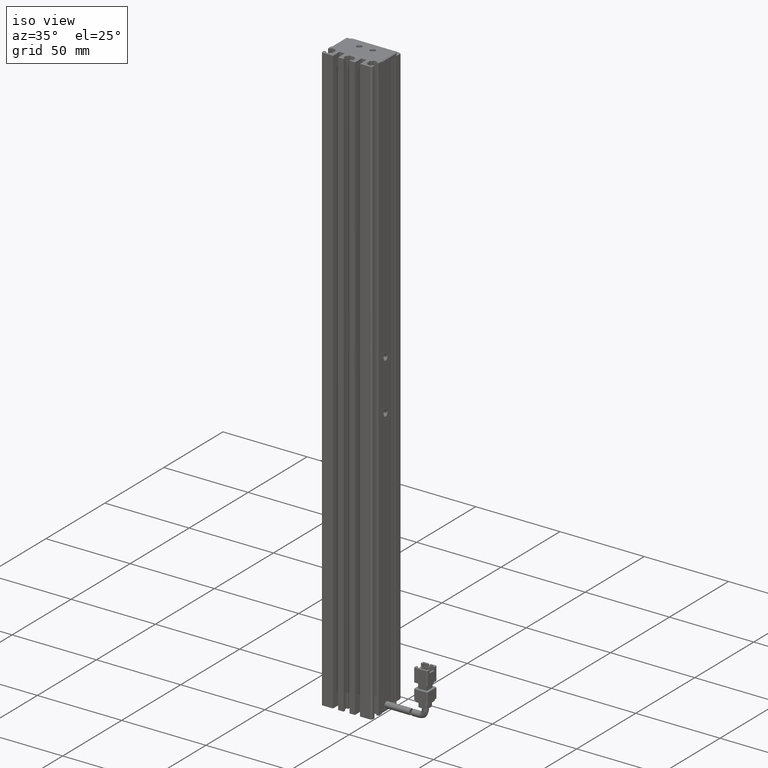
[diagram: clean part render]
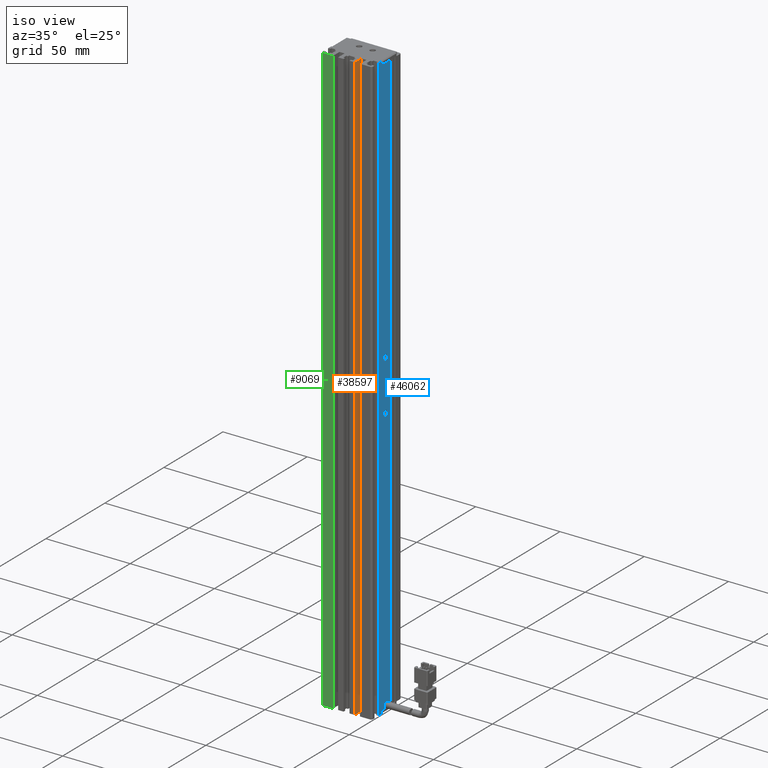
[diagram: same view with three faces highlighted in distinct colors, each labeled with its STEP entity id]
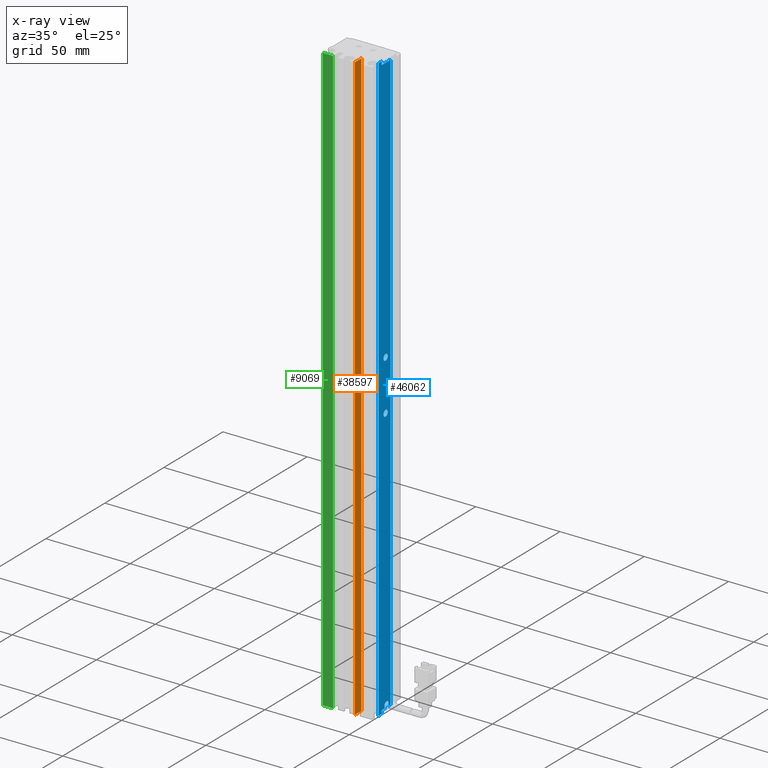
[diagram: x-ray of the same camera — body ghosted, the three highlighted faces saturated]
A machine part, iso view with three faces highlighted in distinct colors.
The next image is the same camera in x-ray (body ghosted, the three faces saturated) — at least one of them is partly hidden behind the body in this view.
Their STEP definitions:

[orange] entity #38597 — the highlighted planar face has unit normal (-1, -0, 0).
#1815 = CARTESIAN_POINT ( 'NONE',  ( 45.92537974683541800, 10.69594479660386800, 60.00000000000001400 ) ) ;
#2630 = VERTEX_POINT ( 'NONE', #11614 ) ;
#4337 = ORIENTED_EDGE ( 'NONE', *, *, #24692, .F. ) ;
#4770 = VECTOR ( 'NONE', #40072, 1000.000000000000000 ) ;
#6033 = PLANE ( 'NONE',  #20970 ) ;
#7322 = CARTESIAN_POINT ( 'NONE',  ( 45.92537974683541800, 7.083797468354437600, -290.0000000000000600 ) ) ;
#8907 = CARTESIAN_POINT ( 'NONE',  ( 45.92537974683541800, 7.083797468354437600, 60.00000000000001400 ) ) ;
#9249 = EDGE_CURVE ( 'NONE', #53989, #2630, #58506, .T. ) ;
#11485 = CARTESIAN_POINT ( 'NONE',  ( 45.92537974683541800, 7.083797468354439400, 60.00000000000001400 ) ) ;
#11614 = CARTESIAN_POINT ( 'NONE',  ( 45.92537974683541800, 16.19594479660386800, 60.00000000000001400 ) ) ;
#16720 = DIRECTION ( 'NONE',  ( 3.154042683594196600E-016, -1.000000000000000000, 0.0000000000000000000 ) ) ;
#17743 = DIRECTION ( 'NONE',  ( 0.0000000000000000000, 1.000000000000000000, -0.0000000000000000000 ) ) ;
#17870 = LINE ( 'NONE', #1815, #57807 ) ;
#19018 = CARTESIAN_POINT ( 'NONE',  ( 45.92537974683541800, 16.19594479660386800, 60.00000000000001400 ) ) ;
#20970 = AXIS2_PLACEMENT_3D ( 'NONE', #11485, #47915, #16720 ) ;
#22292 = FACE_OUTER_BOUND ( 'NONE', #57893, .T. ) ;
#24692 = EDGE_CURVE ( 'NONE', #2630, #41869, #29685, .T. ) ;
#25472 = CARTESIAN_POINT ( 'NONE',  ( 45.92537974683541800, 16.19594479660386800, -290.0000000000000600 ) ) ;
#25681 = EDGE_CURVE ( 'NONE', #65551, #53989, #17870, .T. ) ;
#27649 = EDGE_CURVE ( 'NONE', #65551, #41869, #53643, .T. ) ;
#29685 = LINE ( 'NONE', #19018, #55732 ) ;
#29791 = ORIENTED_EDGE ( 'NONE', *, *, #25681, .F. ) ;
#38597 = ADVANCED_FACE ( 'NONE', ( #22292 ), #6033, .F. ) ;
#39159 = ORIENTED_EDGE ( 'NONE', *, *, #9249, .F. ) ;
#39820 = VECTOR ( 'NONE', #17743, 1000.000000000000000 ) ;
#39826 = CARTESIAN_POINT ( 'NONE',  ( 45.92537974683541800, 10.69594479660386800, -290.0000000000000600 ) ) ;
#40072 = DIRECTION ( 'NONE',  ( 0.0000000000000000000, 1.000000000000000000, -0.0000000000000000000 ) ) ;
#41869 = VERTEX_POINT ( 'NONE', #25472 ) ;
#43685 = DIRECTION ( 'NONE',  ( 0.0000000000000000000, 0.0000000000000000000, 1.000000000000000000 ) ) ;
#45977 = ORIENTED_EDGE ( 'NONE', *, *, #27649, .T. ) ;
#47915 = DIRECTION ( 'NONE',  ( -1.000000000000000000, -3.154042683594196600E-016, 0.0000000000000000000 ) ) ;
#50169 = CARTESIAN_POINT ( 'NONE',  ( 45.92537974683541800, 10.69594479660386800, 60.00000000000001400 ) ) ;
#53643 = LINE ( 'NONE', #7322, #39820 ) ;
#53989 = VERTEX_POINT ( 'NONE', #50169 ) ;
#55732 = VECTOR ( 'NONE', #60715, 1000.000000000000000 ) ;
#57807 = VECTOR ( 'NONE', #43685, 1000.000000000000000 ) ;
#57893 = EDGE_LOOP ( 'NONE', ( #4337, #39159, #29791, #45977 ) ) ;
#58506 = LINE ( 'NONE', #8907, #4770 ) ;
#60715 = DIRECTION ( 'NONE',  ( 0.0000000000000000000, -0.0000000000000000000, -1.000000000000000000 ) ) ;
#65551 = VERTEX_POINT ( 'NONE', #39826 ) ;

[blue] entity #46062 — the highlighted planar face has unit normal (-1, 0, 0).
#957 = ORIENTED_EDGE ( 'NONE', *, *, #5269, .F. ) ;
#1747 = CARTESIAN_POINT ( 'NONE',  ( 55.92537974682178300, 22.39594479660386700, -131.7999999999892700 ) ) ;
#1802 = DIRECTION ( 'NONE',  ( 1.000000000000000000, 5.687617954022316600E-016, -0.0000000000000000000 ) ) ;
#2098 = DIRECTION ( 'NONE',  ( -0.0000000000000000000, 0.0000000000000000000, 1.000000000000000000 ) ) ;
#2313 = LINE ( 'NONE', #26622, #15489 ) ;
#2481 = ORIENTED_EDGE ( 'NONE', *, *, #15106, .F. ) ;
#2681 = EDGE_CURVE ( 'NONE', #32653, #48381, #8466, .T. ) ;
#2732 = CARTESIAN_POINT ( 'NONE',  ( 55.92537974683541100, 7.083797468354417100, 60.00000000000001400 ) ) ;
#2837 = EDGE_CURVE ( 'NONE', #56686, #42574, #32599, .T. ) ;
#4151 = ORIENTED_EDGE ( 'NONE', *, *, #30730, .F. ) ;
#4585 = CARTESIAN_POINT ( 'NONE',  ( 55.92537974683542500, 21.54594479660386600, -288.0000000000000600 ) ) ;
#4954 = FACE_OUTER_BOUND ( 'NONE', #36624, .T. ) ;
#5269 = EDGE_CURVE ( 'NONE', #36469, #59228, #44937, .T. ) ;
#6854 = DIRECTION ( 'NONE',  ( -0.0000000000000000000, 0.0000000000000000000, 1.000000000000000000 ) ) ;
#7111 = AXIS2_PLACEMENT_3D ( 'NONE', #16241, #52635, #21502 ) ;
#7191 = VERTEX_POINT ( 'NONE', #1747 ) ;
#7515 = VECTOR ( 'NONE', #56982, 1000.000000000000000 ) ;
#7553 = ORIENTED_EDGE ( 'NONE', *, *, #40631, .T. ) ;
#7994 = DIRECTION ( 'NONE',  ( -1.394554826879015900E-015, -1.000000000000000000, 0.0000000000000000000 ) ) ;
#8466 = LINE ( 'NONE', #22353, #60595 ) ;
#9502 = LINE ( 'NONE', #26984, #35567 ) ;
#10042 = VECTOR ( 'NONE', #56375, 1000.000000000000000 ) ;
#10043 = VERTEX_POINT ( 'NONE', #13459 ) ;
#10627 = CIRCLE ( 'NONE', #15543, 1.799999999989254600 ) ;
#10849 = VERTEX_POINT ( 'NONE', #62549 ) ;
#11068 = EDGE_LOOP ( 'NONE', ( #55875, #53091 ) ) ;
#11475 = ORIENTED_EDGE ( 'NONE', *, *, #52433, .F. ) ;
#11603 = LINE ( 'NONE', #19958, #10042 ) ;
#12622 = ORIENTED_EDGE ( 'NONE', *, *, #45484, .F. ) ;
#12928 = LINE ( 'NONE', #55278, #26774 ) ;
#13459 = CARTESIAN_POINT ( 'NONE',  ( 55.92537974683539700, 21.54594479660386200, -286.4499999999999900 ) ) ;
#13503 = EDGE_CURVE ( 'NONE', #56686, #42696, #54737, .T. ) ;
#13861 = DIRECTION ( 'NONE',  ( -0.0000000000000000000, -0.0000000000000000000, -1.000000000000000000 ) ) ;
#14108 = LINE ( 'NONE', #60201, #53993 ) ;
#14851 = VECTOR ( 'NONE', #2098, 1000.000000000000000 ) ;
#15106 = EDGE_CURVE ( 'NONE', #20601, #48381, #9502, .T. ) ;
#15489 = VECTOR ( 'NONE', #52569, 1000.000000000000000 ) ;
#15495 = CARTESIAN_POINT ( 'NONE',  ( 55.92537974687862600, 22.39594479660386700, -100.0000000000000000 ) ) ;
#15543 = AXIS2_PLACEMENT_3D ( 'NONE', #22866, #59229, #28073 ) ;
#16241 = CARTESIAN_POINT ( 'NONE',  ( 55.92537974687862600, 22.39594479660386700, -100.0000000000000000 ) ) ;
#16803 = ORIENTED_EDGE ( 'NONE', *, *, #2681, .T. ) ;
#18203 = PLANE ( 'NONE',  #30381 ) ;
#18972 = DIRECTION ( 'NONE',  ( 1.000000000000000000, 0.0000000000000000000, 0.0000000000000000000 ) ) ;
#19958 = CARTESIAN_POINT ( 'NONE',  ( 55.92537974683539700, 24.84594479660386300, -288.0000000000000600 ) ) ;
#20538 = CARTESIAN_POINT ( 'NONE',  ( 55.92537974683539700, 24.84594479660386300, -286.4499999999999900 ) ) ;
#20593 = ORIENTED_EDGE ( 'NONE', *, *, #22346, .T. ) ;
#20601 = VERTEX_POINT ( 'NONE', #55135 ) ;
#20737 = DIRECTION ( 'NONE',  ( 0.0000000000000000000, 0.0000000000000000000, -1.000000000000000000 ) ) ;
#21502 = DIRECTION ( 'NONE',  ( 0.0000000000000000000, 0.0000000000000000000, -1.000000000000000000 ) ) ;
#21683 = ORIENTED_EDGE ( 'NONE', *, *, #13503, .T. ) ;
#22346 = EDGE_CURVE ( 'NONE', #25388, #10043, #62657, .T. ) ;
#22353 = CARTESIAN_POINT ( 'NONE',  ( 55.92537974683542500, 19.19594479660386500, 60.00000000000001400 ) ) ;
#22441 = CARTESIAN_POINT ( 'NONE',  ( 55.92537974683542500, 16.49594479660387200, -290.0000000000000600 ) ) ;
#22866 = CARTESIAN_POINT ( 'NONE',  ( 55.92537974682178300, 22.39594479660386700, -130.0000000000000000 ) ) ;
#23783 = DIRECTION ( 'NONE',  ( 0.0000000000000000000, 0.0000000000000000000, 1.000000000000000000 ) ) ;
#23937 = ORIENTED_EDGE ( 'NONE', *, *, #45735, .F. ) ;
#24367 = CARTESIAN_POINT ( 'NONE',  ( 55.92537974683541100, 7.083797468354417100, -290.0000000000000600 ) ) ;
#24538 = CARTESIAN_POINT ( 'NONE',  ( 55.92537974683543200, 19.19594479660386500, -290.0000000000000600 ) ) ;
#24619 = ORIENTED_EDGE ( 'NONE', *, *, #2837, .F. ) ;
#25388 = VERTEX_POINT ( 'NONE', #4585 ) ;
#26622 = CARTESIAN_POINT ( 'NONE',  ( 55.92537974683541100, 7.083797468354417100, 58.00000000000000700 ) ) ;
#26774 = VECTOR ( 'NONE', #13861, 1000.000000000000000 ) ;
#26984 = CARTESIAN_POINT ( 'NONE',  ( 55.92537974683542500, 7.083797468354437600, 60.00000000000001400 ) ) ;
#27120 = VERTEX_POINT ( 'NONE', #20538 ) ;
#27164 = EDGE_CURVE ( 'NONE', #7191, #57667, #66922, .T. ) ;
#28073 = DIRECTION ( 'NONE',  ( 0.0000000000000000000, 0.0000000000000000000, -1.000000000000000000 ) ) ;
#28416 = CARTESIAN_POINT ( 'NONE',  ( 55.92537974687862600, 22.39594479660386700, -98.19999999992660400 ) ) ;
#30231 = EDGE_CURVE ( 'NONE', #57667, #7191, #10627, .T. ) ;
#30300 = CARTESIAN_POINT ( 'NONE',  ( 55.92537974683543200, 19.19594479660386500, 58.00000000000000700 ) ) ;
#30381 = AXIS2_PLACEMENT_3D ( 'NONE', #2732, #39175, #7994 ) ;
#30730 = EDGE_CURVE ( 'NONE', #32653, #31229, #2313, .T. ) ;
#31028 = EDGE_CURVE ( 'NONE', #31229, #54729, #12928, .T. ) ;
#31229 = VERTEX_POINT ( 'NONE', #62583 ) ;
#31871 = VECTOR ( 'NONE', #43271, 1000.000000000000000 ) ;
#32599 = LINE ( 'NONE', #24367, #60305 ) ;
#32653 = VERTEX_POINT ( 'NONE', #30300 ) ;
#33002 = CARTESIAN_POINT ( 'NONE',  ( 55.92537974683539700, 23.19594479660386500, -286.4499999999999900 ) ) ;
#33314 = CARTESIAN_POINT ( 'NONE',  ( 55.92537974683543200, 19.19594479660386500, 60.00000000000001400 ) ) ;
#33523 = LINE ( 'NONE', #38033, #31871 ) ;
#33595 = CARTESIAN_POINT ( 'NONE',  ( 55.92537974683543200, 19.19594479660386500, -288.0000000000000600 ) ) ;
#34941 = VECTOR ( 'NONE', #44763, 1000.000000000000000 ) ;
#35220 = LINE ( 'NONE', #51492, #7515 ) ;
#35567 = VECTOR ( 'NONE', #37444, 1000.000000000000000 ) ;
#35762 = CARTESIAN_POINT ( 'NONE',  ( 55.92537974683543200, 26.69594479660386800, -288.0000000000000600 ) ) ;
#35795 = ORIENTED_EDGE ( 'NONE', *, *, #67564, .F. ) ;
#36469 = VERTEX_POINT ( 'NONE', #49613 ) ;
#36624 = EDGE_LOOP ( 'NONE', ( #20593, #35795, #7553, #51053, #41252, #4151, #16803, #2481, #12622, #24619, #21683, #23937 ) ) ;
#37444 = DIRECTION ( 'NONE',  ( 0.0000000000000000000, 1.000000000000000000, -0.0000000000000000000 ) ) ;
#38033 = CARTESIAN_POINT ( 'NONE',  ( 55.92537974683541100, 7.083797468354417100, -288.0000000000000600 ) ) ;
#38236 = DIRECTION ( 'NONE',  ( 0.0000000000000000000, 1.000000000000000000, 0.0000000000000000000 ) ) ;
#38862 = CARTESIAN_POINT ( 'NONE',  ( 55.92537974683542500, 19.19594479660386500, 60.00000000000001400 ) ) ;
#39175 = DIRECTION ( 'NONE',  ( -1.000000000000000000, 1.394554826879015900E-015, 0.0000000000000000000 ) ) ;
#39550 = CARTESIAN_POINT ( 'NONE',  ( 55.92537974683540400, 21.54594479660386600, -288.0000000000000600 ) ) ;
#40631 = EDGE_CURVE ( 'NONE', #27120, #10849, #11603, .T. ) ;
#41252 = ORIENTED_EDGE ( 'NONE', *, *, #31028, .F. ) ;
#42574 = VERTEX_POINT ( 'NONE', #22441 ) ;
#42696 = VERTEX_POINT ( 'NONE', #33595 ) ;
#43271 = DIRECTION ( 'NONE',  ( -1.394554826879015900E-015, -1.000000000000000000, 0.0000000000000000000 ) ) ;
#43482 = AXIS2_PLACEMENT_3D ( 'NONE', #50159, #18972, #55390 ) ;
#44763 = DIRECTION ( 'NONE',  ( -0.0000000000000000000, -1.119176436114072200E-015, 1.000000000000000000 ) ) ;
#44937 = CIRCLE ( 'NONE', #64984, 1.800000000073395800 ) ;
#45484 = EDGE_CURVE ( 'NONE', #42574, #20601, #14108, .T. ) ;
#45735 = EDGE_CURVE ( 'NONE', #25388, #42696, #35220, .T. ) ;
#45947 = EDGE_CURVE ( 'NONE', #54729, #10849, #33523, .T. ) ;
#46062 = ADVANCED_FACE ( 'NONE', ( #60360, #4954, #46501 ), #18203, .F. ) ;
#46501 = FACE_BOUND ( 'NONE', #11068, .T. ) ;
#48381 = VERTEX_POINT ( 'NONE', #38862 ) ;
#48985 = CARTESIAN_POINT ( 'NONE',  ( 55.92537974682178300, 22.39594479660386700, -128.2000000000107600 ) ) ;
#49613 = CARTESIAN_POINT ( 'NONE',  ( 55.92537974687862600, 22.39594479660386700, -101.8000000000734000 ) ) ;
#50159 = CARTESIAN_POINT ( 'NONE',  ( 55.92537974682178300, 22.39594479660386700, -130.0000000000000000 ) ) ;
#51053 = ORIENTED_EDGE ( 'NONE', *, *, #45947, .F. ) ;
#51492 = CARTESIAN_POINT ( 'NONE',  ( 55.92537974683541100, 7.083797468354417100, -288.0000000000000600 ) ) ;
#51888 = DIRECTION ( 'NONE',  ( 1.000000000000000000, 0.0000000000000000000, 0.0000000000000000000 ) ) ;
#52073 = CIRCLE ( 'NONE', #61118, 1.649999999999998600 ) ;
#52433 = EDGE_CURVE ( 'NONE', #59228, #36469, #55200, .T. ) ;
#52569 = DIRECTION ( 'NONE',  ( 1.394554826879015900E-015, 1.000000000000000000, -0.0000000000000000000 ) ) ;
#52635 = DIRECTION ( 'NONE',  ( 1.000000000000000000, 0.0000000000000000000, 0.0000000000000000000 ) ) ;
#53091 = ORIENTED_EDGE ( 'NONE', *, *, #30231, .F. ) ;
#53993 = VECTOR ( 'NONE', #23783, 1000.000000000000000 ) ;
#54729 = VERTEX_POINT ( 'NONE', #35762 ) ;
#54737 = LINE ( 'NONE', #33314, #14851 ) ;
#55135 = CARTESIAN_POINT ( 'NONE',  ( 55.92537974683542500, 16.49594479660387200, 60.00000000000001400 ) ) ;
#55200 = CIRCLE ( 'NONE', #7111, 1.800000000073395800 ) ;
#55278 = CARTESIAN_POINT ( 'NONE',  ( 55.92537974683543900, 26.69594479660386800, 60.00000000000001400 ) ) ;
#55390 = DIRECTION ( 'NONE',  ( 0.0000000000000000000, 0.0000000000000000000, -1.000000000000000000 ) ) ;
#55875 = ORIENTED_EDGE ( 'NONE', *, *, #27164, .F. ) ;
#56375 = DIRECTION ( 'NONE',  ( -0.0000000000000000000, -0.0000000000000000000, -1.000000000000000000 ) ) ;
#56686 = VERTEX_POINT ( 'NONE', #24538 ) ;
#56982 = DIRECTION ( 'NONE',  ( -1.394554826879015900E-015, -1.000000000000000000, 0.0000000000000000000 ) ) ;
#57667 = VERTEX_POINT ( 'NONE', #48985 ) ;
#59228 = VERTEX_POINT ( 'NONE', #28416 ) ;
#59229 = DIRECTION ( 'NONE',  ( 1.000000000000000000, 0.0000000000000000000, 0.0000000000000000000 ) ) ;
#60201 = CARTESIAN_POINT ( 'NONE',  ( 55.92537974683542500, 16.49594479660387200, 60.00000000000001400 ) ) ;
#60305 = VECTOR ( 'NONE', #60798, 1000.000000000000000 ) ;
#60360 = FACE_BOUND ( 'NONE', #65675, .T. ) ;
#60595 = VECTOR ( 'NONE', #6854, 1000.000000000000000 ) ;
#60798 = DIRECTION ( 'NONE',  ( -1.394554826879015900E-015, -1.000000000000000000, 0.0000000000000000000 ) ) ;
#61118 = AXIS2_PLACEMENT_3D ( 'NONE', #33002, #1802, #38236 ) ;
#62549 = CARTESIAN_POINT ( 'NONE',  ( 55.92537974683541100, 24.84594479660386300, -288.0000000000000600 ) ) ;
#62583 = CARTESIAN_POINT ( 'NONE',  ( 55.92537974683543900, 26.69594479660386800, 58.00000000000000700 ) ) ;
#62657 = LINE ( 'NONE', #39550, #34941 ) ;
#64984 = AXIS2_PLACEMENT_3D ( 'NONE', #15495, #51888, #20737 ) ;
#65675 = EDGE_LOOP ( 'NONE', ( #957, #11475 ) ) ;
#66922 = CIRCLE ( 'NONE', #43482, 1.799999999989254600 ) ;
#67564 = EDGE_CURVE ( 'NONE', #27120, #10043, #52073, .T. ) ;

[green] entity #9069 — the highlighted planar face has unit normal (0, -1, 0).
#168 = VECTOR ( 'NONE', #16183, 1000.000000000000000 ) ;
#530 = CARTESIAN_POINT ( 'NONE',  ( 32.92537974683543200, 10.69594479660386800, -290.0000000000000600 ) ) ;
#575 = DIRECTION ( 'NONE',  ( 0.0000000000000000000, -0.0000000000000000000, -1.000000000000000000 ) ) ;
#1103 = VERTEX_POINT ( 'NONE', #60340 ) ;
#1869 = VERTEX_POINT ( 'NONE', #63387 ) ;
#2074 = CARTESIAN_POINT ( 'NONE',  ( 40.92537974683542500, 10.69594479660386800, 60.00000000000001400 ) ) ;
#3027 = EDGE_CURVE ( 'NONE', #1103, #23142, #46517, .T. ) ;
#4035 = EDGE_CURVE ( 'NONE', #33667, #1103, #58375, .T. ) ;
#4968 = VECTOR ( 'NONE', #51512, 1000.000000000000000 ) ;
#7335 = DIRECTION ( 'NONE',  ( 0.0000000000000000000, -0.0000000000000000000, -1.000000000000000000 ) ) ;
#9069 = ADVANCED_FACE ( 'NONE', ( #33272 ), #12305, .T. ) ;
#9433 = ORIENTED_EDGE ( 'NONE', *, *, #4035, .T. ) ;
#12305 = PLANE ( 'NONE',  #36944 ) ;
#13156 = ORIENTED_EDGE ( 'NONE', *, *, #56812, .F. ) ;
#16183 = DIRECTION ( 'NONE',  ( 0.0000000000000000000, 0.0000000000000000000, 1.000000000000000000 ) ) ;
#23142 = VERTEX_POINT ( 'NONE', #530 ) ;
#23346 = CARTESIAN_POINT ( 'NONE',  ( 26.92537974683542100, 10.69594479660386800, 60.00000000000001400 ) ) ;
#26510 = CARTESIAN_POINT ( 'NONE',  ( 26.92537974683542100, 10.69594479660386800, 60.00000000000001400 ) ) ;
#29010 = VECTOR ( 'NONE', #41359, 1000.000000000000000 ) ;
#30744 = VECTOR ( 'NONE', #575, 1000.000000000000000 ) ;
#31673 = CARTESIAN_POINT ( 'NONE',  ( 32.92537974683543200, 10.69594479660386800, 60.00000000000001400 ) ) ;
#32371 = EDGE_CURVE ( 'NONE', #23142, #1869, #41739, .T. ) ;
#33272 = FACE_OUTER_BOUND ( 'NONE', #50499, .T. ) ;
#33667 = VERTEX_POINT ( 'NONE', #23346 ) ;
#36944 = AXIS2_PLACEMENT_3D ( 'NONE', #2074, #38502, #7335 ) ;
#38502 = DIRECTION ( 'NONE',  ( 0.0000000000000000000, -1.000000000000000000, 0.0000000000000000000 ) ) ;
#39997 = ORIENTED_EDGE ( 'NONE', *, *, #3027, .T. ) ;
#41359 = DIRECTION ( 'NONE',  ( 1.000000000000000000, 0.0000000000000000000, 0.0000000000000000000 ) ) ;
#41739 = LINE ( 'NONE', #31673, #168 ) ;
#42824 = LINE ( 'NONE', #67364, #29010 ) ;
#46517 = LINE ( 'NONE', #62274, #4968 ) ;
#50499 = EDGE_LOOP ( 'NONE', ( #13156, #9433, #39997, #55304 ) ) ;
#51512 = DIRECTION ( 'NONE',  ( 1.000000000000000000, 0.0000000000000000000, 0.0000000000000000000 ) ) ;
#55304 = ORIENTED_EDGE ( 'NONE', *, *, #32371, .T. ) ;
#56812 = EDGE_CURVE ( 'NONE', #33667, #1869, #42824, .T. ) ;
#58375 = LINE ( 'NONE', #26510, #30744 ) ;
#60340 = CARTESIAN_POINT ( 'NONE',  ( 26.92537974683542100, 10.69594479660386800, -290.0000000000000600 ) ) ;
#62274 = CARTESIAN_POINT ( 'NONE',  ( 40.92537974683542500, 10.69594479660386800, -290.0000000000000600 ) ) ;
#63387 = CARTESIAN_POINT ( 'NONE',  ( 32.92537974683543200, 10.69594479660386800, 60.00000000000001400 ) ) ;
#67364 = CARTESIAN_POINT ( 'NONE',  ( 40.92537974683542500, 10.69594479660386800, 60.00000000000001400 ) ) ;